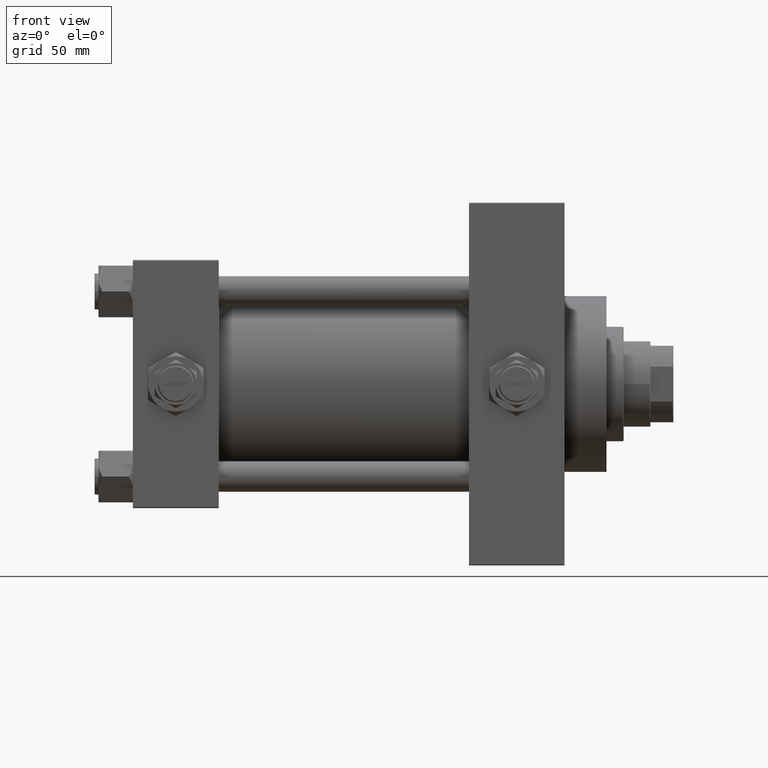
[diagram: clean part render]
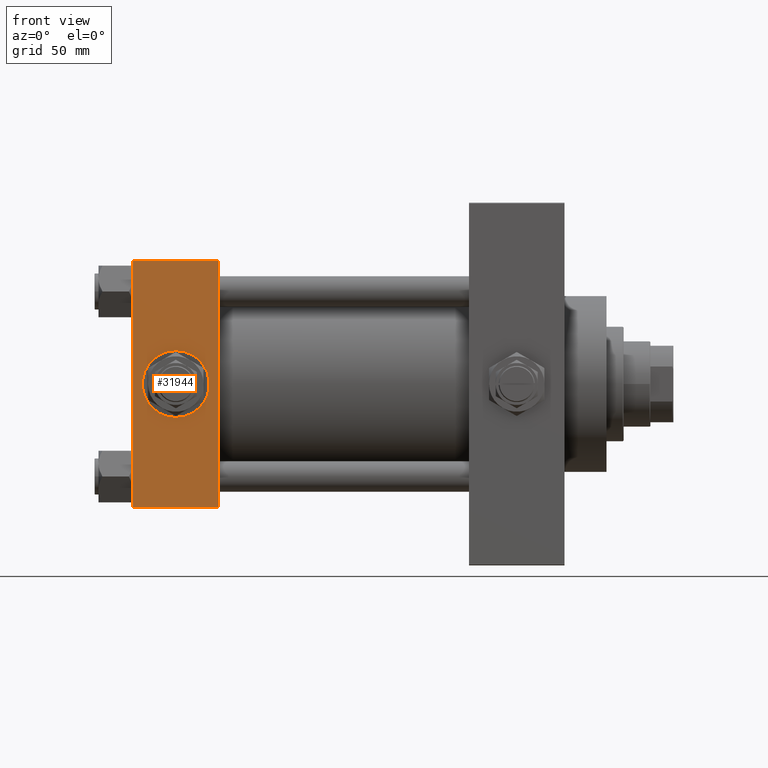
[diagram: same view with one face highlighted and labeled with its STEP entity id]
A machine part, front view. The second image highlights one B-rep face of the part: STEP entity #31944.
In plain terms, the highlighted planar face has unit normal (0, 1, 0).
Its self-contained STEP definition (entity closure, byte-faithful):
#213 = DIRECTION ( 'NONE',  ( 0.000000000000000000, -1.000000000000000000, -8.673617379884036705E-17 ) ) ;
#687 = EDGE_CURVE ( 'NONE', #46603, #43676, #4700, .T. ) ;
#2691 = EDGE_CURVE ( 'NONE', #43676, #21165, #20902, .T. ) ;
#2906 = EDGE_CURVE ( 'NONE', #21165, #18922, #4757, .T. ) ;
#3078 = CARTESIAN_POINT ( 'NONE',  ( 45.00000000000000000, -65.00000000000000000, 65.00000000000000000 ) ) ;
#3836 = EDGE_CURVE ( 'NONE', #46603, #18922, #6380, .T. ) ;
#4700 = LINE ( 'NONE', #20047, #11718 ) ;
#4757 = LINE ( 'NONE', #20102, #38311 ) ;
#4892 = CARTESIAN_POINT ( 'NONE',  ( 22.50000000000000355, -65.00000000000000000, 17.50000000000000000 ) ) ;
#6029 = DIRECTION ( 'NONE',  ( -0.000000000000000000, 1.000000000000000000, 0.000000000000000000 ) ) ;
#6190 = EDGE_CURVE ( 'NONE', #17424, #46928, #29579, .T. ) ;
#6380 = LINE ( 'NONE', #3078, #22268 ) ;
#7192 = CARTESIAN_POINT ( 'NONE',  ( 0.000000000000000000, -65.00000000000000000, -64.49999999999991473 ) ) ;
#8611 = AXIS2_PLACEMENT_3D ( 'NONE', #48060, #6029, #21376 ) ;
#10642 = EDGE_LOOP ( 'NONE', ( #13342, #39355, #35762, #39598 ) ) ;
#11718 = VECTOR ( 'NONE', #40165, 1000.000000000000000 ) ;
#12620 = VECTOR ( 'NONE', #36253, 1000.000000000000000 ) ;
#13342 = ORIENTED_EDGE ( 'NONE', *, *, #2691, .T. ) ;
#15558 = DIRECTION ( 'NONE',  ( 0.000000000000000000, 0.000000000000000000, -1.000000000000000000 ) ) ;
#17424 = VERTEX_POINT ( 'NONE', #4892 ) ;
#18395 = CARTESIAN_POINT ( 'NONE',  ( 45.00000000000000000, -65.00000000000000000, 64.50000000000000000 ) ) ;
#18922 = VERTEX_POINT ( 'NONE', #27057 ) ;
#20047 = CARTESIAN_POINT ( 'NONE',  ( 45.00000000000000000, -65.00000000000000000, 64.50000000000000000 ) ) ;
#20102 = CARTESIAN_POINT ( 'NONE',  ( 45.00000000000000000, -65.00000000000000000, -64.49999999999991473 ) ) ;
#20296 = EDGE_CURVE ( 'NONE', #46928, #17424, #30802, .T. ) ;
#20902 = LINE ( 'NONE', #36500, #12620 ) ;
#21165 = VERTEX_POINT ( 'NONE', #7192 ) ;
#21376 = DIRECTION ( 'NONE',  ( 0.000000000000000000, -0.000000000000000000, 1.000000000000000000 ) ) ;
#21630 = FACE_BOUND ( 'NONE', #42907, .T. ) ;
#22268 = VECTOR ( 'NONE', #25500, 1000.000000000000000 ) ;
#22341 = AXIS2_PLACEMENT_3D ( 'NONE', #34695, #213, #15558 ) ;
#25500 = DIRECTION ( 'NONE',  ( 0.000000000000000000, 0.000000000000000000, -1.000000000000000000 ) ) ;
#27057 = CARTESIAN_POINT ( 'NONE',  ( 45.00000000000000000, -65.00000000000000000, -64.49999999999991473 ) ) ;
#29579 = CIRCLE ( 'NONE', #22341, 17.50000000000000000 ) ;
#30548 = ORIENTED_EDGE ( 'NONE', *, *, #6190, .F. ) ;
#30802 = CIRCLE ( 'NONE', #34040, 17.50000000000000000 ) ;
#31944 = ADVANCED_FACE ( 'NONE', ( #21630, #43531 ), #44031, .F. ) ;
#33018 = DIRECTION ( 'NONE',  ( 0.000000000000000000, -1.000000000000000000, -8.673617379884036705E-17 ) ) ;
#34040 = AXIS2_PLACEMENT_3D ( 'NONE', #40310, #33018, #36530 ) ;
#34695 = CARTESIAN_POINT ( 'NONE',  ( 22.50000000000000000, -65.00000000000000000, 0.000000000000000000 ) ) ;
#34705 = CARTESIAN_POINT ( 'NONE',  ( 22.50000000000000000, -65.00000000000000000, -17.50000000000000000 ) ) ;
#35762 = ORIENTED_EDGE ( 'NONE', *, *, #3836, .F. ) ;
#36253 = DIRECTION ( 'NONE',  ( 0.000000000000000000, 0.000000000000000000, -1.000000000000000000 ) ) ;
#36500 = CARTESIAN_POINT ( 'NONE',  ( 0.000000000000000000, -65.00000000000000000, 65.00000000000000000 ) ) ;
#36530 = DIRECTION ( 'NONE',  ( 0.000000000000000000, 0.000000000000000000, -1.000000000000000000 ) ) ;
#38311 = VECTOR ( 'NONE', #38988, 1000.000000000000000 ) ;
#38988 = DIRECTION ( 'NONE',  ( 1.000000000000000000, 0.000000000000000000, 0.000000000000000000 ) ) ;
#39355 = ORIENTED_EDGE ( 'NONE', *, *, #2906, .T. ) ;
#39598 = ORIENTED_EDGE ( 'NONE', *, *, #687, .T. ) ;
#40165 = DIRECTION ( 'NONE',  ( -1.000000000000000000, 0.000000000000000000, 0.000000000000000000 ) ) ;
#40310 = CARTESIAN_POINT ( 'NONE',  ( 22.50000000000000000, -65.00000000000000000, 0.000000000000000000 ) ) ;
#40856 = CARTESIAN_POINT ( 'NONE',  ( 0.000000000000000000, -65.00000000000000000, 64.50000000000000000 ) ) ;
#42907 = EDGE_LOOP ( 'NONE', ( #43413, #30548 ) ) ;
#43413 = ORIENTED_EDGE ( 'NONE', *, *, #20296, .F. ) ;
#43531 = FACE_OUTER_BOUND ( 'NONE', #10642, .T. ) ;
#43676 = VERTEX_POINT ( 'NONE', #40856 ) ;
#44031 = PLANE ( 'NONE',  #8611 ) ;
#46603 = VERTEX_POINT ( 'NONE', #18395 ) ;
#46928 = VERTEX_POINT ( 'NONE', #34705 ) ;
#48060 = CARTESIAN_POINT ( 'NONE',  ( 45.00000000000000000, -65.00000000000000000, 65.00000000000000000 ) ) ;